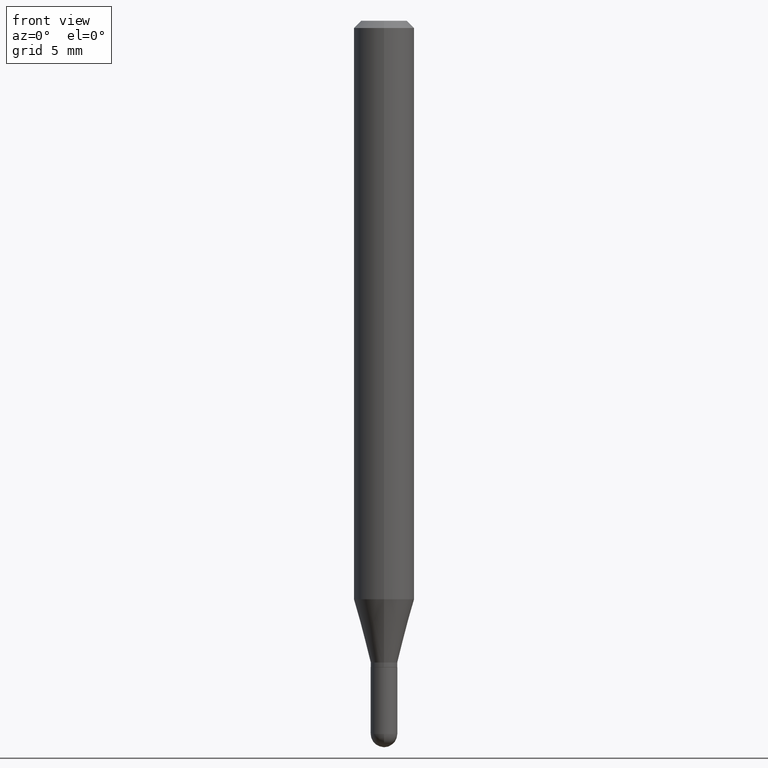
[diagram: clean part render]
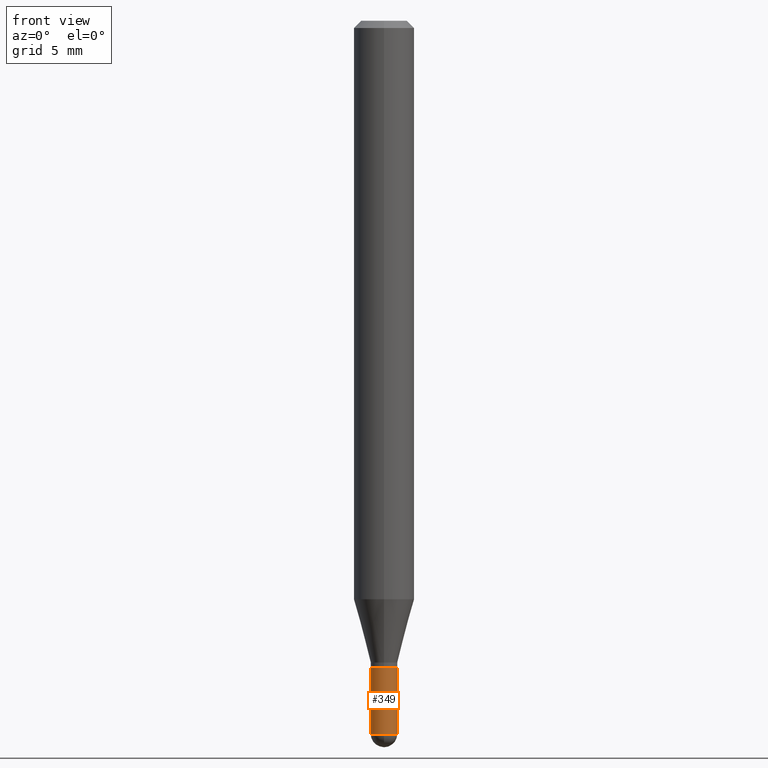
[diagram: same view with one face highlighted and labeled with its STEP entity id]
A machine part, front view. The second image highlights one B-rep face of the part: STEP entity #349.
In plain terms, the highlighted cylindrical surface (edge-blend (fillet) strip) has radius 0.6985 mm, axis along (-0, 0, 1).
Its self-contained STEP definition (entity closure, byte-faithful):
#11 = EDGE_CURVE ( 'NONE', #209, #200, #354, .T. ) ;
#17 = VECTOR ( 'NONE', #160, 39.37007874015748143 ) ;
#19 = CARTESIAN_POINT ( 'NONE',  ( 0.000000000000000000, 0.000000000000000000, 0.000000000000000000 ) ) ;
#34 = DIRECTION ( 'NONE',  ( -2.445468806185136597E-29, 3.491481338843145583E-15, 1.000000000000000000 ) ) ;
#47 = CIRCLE ( 'NONE', #279, 0.02750000000000000708 ) ;
#67 = DIRECTION ( 'NONE',  ( -2.445468806185136597E-29, 3.491481338843145583E-15, 1.000000000000000000 ) ) ;
#79 = AXIS2_PLACEMENT_3D ( 'NONE', #443, #355, #246 ) ;
#103 = CARTESIAN_POINT ( 'NONE',  ( -0.02750000000000000708, 1.953992523340276014E-16, -1.352707149820099356E-30 ) ) ;
#111 = VERTEX_POINT ( 'NONE', #131 ) ;
#131 = CARTESIAN_POINT ( 'NONE',  ( -0.02750000000000000014, -4.705767677067038393E-15, -1.335000000000000187 ) ) ;
#132 = CIRCLE ( 'NONE', #79, 0.02750000000000000014 ) ;
#137 = EDGE_CURVE ( 'NONE', #200, #214, #512, .T. ) ;
#142 = CARTESIAN_POINT ( 'NONE',  ( -0.02750000000000000708, -4.705767677067038393E-15, -1.472500000000000142 ) ) ;
#143 = CYLINDRICAL_SURFACE ( 'NONE', #496, 0.02750000000000000708 ) ;
#160 = DIRECTION ( 'NONE',  ( -2.445468806185136877E-29, 3.491481338843145188E-15, 1.000000000000000000 ) ) ;
#165 = EDGE_LOOP ( 'NONE', ( #476, #353, #376, #185, #492 ) ) ;
#185 = ORIENTED_EDGE ( 'NONE', *, *, #137, .T. ) ;
#188 = CARTESIAN_POINT ( 'NONE',  ( 3.600952817107613706E-29, -5.141206271446532325E-15, -1.472500000000000142 ) ) ;
#194 = DIRECTION ( 'NONE',  ( 1.000000000000000000, -6.982962677686277755E-15, 0.000000000000000000 ) ) ;
#200 = VERTEX_POINT ( 'NONE', #361 ) ;
#209 = VERTEX_POINT ( 'NONE', #404 ) ;
#214 = VERTEX_POINT ( 'NONE', #445 ) ;
#242 = VERTEX_POINT ( 'NONE', #142 ) ;
#246 = DIRECTION ( 'NONE',  ( 1.000000000000000000, -6.982962677686279332E-15, 0.000000000000000000 ) ) ;
#248 = LINE ( 'NONE', #103, #364 ) ;
#254 = DIRECTION ( 'NONE',  ( -2.445468806185136597E-29, 3.491481338843145583E-15, 1.000000000000000000 ) ) ;
#277 = CARTESIAN_POINT ( 'NONE',  ( 0.02750000000000000708, -1.920314736363723691E-16, 1.340948613343882588E-30 ) ) ;
#279 = AXIS2_PLACEMENT_3D ( 'NONE', #188, #67, #331 ) ;
#288 = EDGE_CURVE ( 'NONE', #242, #111, #248, .T. ) ;
#315 = DIRECTION ( 'NONE',  ( -2.445468806185136877E-29, 3.491481338843145188E-15, 1.000000000000000000 ) ) ;
#324 = EDGE_CURVE ( 'NONE', #111, #214, #132, .T. ) ;
#331 = DIRECTION ( 'NONE',  ( 1.000000000000000000, -6.982962677686277755E-15, 0.000000000000000000 ) ) ;
#349 = ADVANCED_FACE ( 'NONE', ( #489 ), #143, .T. ) ;
#353 = ORIENTED_EDGE ( 'NONE', *, *, #505, .T. ) ;
#354 = CIRCLE ( 'NONE', #424, 0.02750000000000000708 ) ;
#355 = DIRECTION ( 'NONE',  ( -2.445468806185136597E-29, 3.491481338843145583E-15, 1.000000000000000000 ) ) ;
#361 = CARTESIAN_POINT ( 'NONE',  ( 0.02750000000000000708, -5.093198403037438216E-15, -1.472500000000000142 ) ) ;
#364 = VECTOR ( 'NONE', #315, 39.37007874015748143 ) ;
#376 = ORIENTED_EDGE ( 'NONE', *, *, #11, .T. ) ;
#378 = CARTESIAN_POINT ( 'NONE',  ( 3.600952817107613706E-29, -5.141206271446532325E-15, -1.472500000000000142 ) ) ;
#404 = CARTESIAN_POINT ( 'NONE',  ( -1.920314736363366977E-16, -0.02750000000000519737, -1.472500000000000142 ) ) ;
#406 = DIRECTION ( 'NONE',  ( 1.000000000000000000, -6.982962677686265922E-15, 4.876176775795935232E-29 ) ) ;
#424 = AXIS2_PLACEMENT_3D ( 'NONE', #378, #34, #194 ) ;
#443 = CARTESIAN_POINT ( 'NONE',  ( 3.264700856257157760E-29, -4.661127587355599122E-15, -1.335000000000000187 ) ) ;
#445 = CARTESIAN_POINT ( 'NONE',  ( 0.02750000000000000014, -4.853159060991972403E-15, -1.335000000000000187 ) ) ;
#476 = ORIENTED_EDGE ( 'NONE', *, *, #288, .F. ) ;
#489 = FACE_OUTER_BOUND ( 'NONE', #165, .T. ) ;
#492 = ORIENTED_EDGE ( 'NONE', *, *, #324, .F. ) ;
#496 = AXIS2_PLACEMENT_3D ( 'NONE', #19, #254, #406 ) ;
#505 = EDGE_CURVE ( 'NONE', #242, #209, #47, .T. ) ;
#512 = LINE ( 'NONE', #277, #17 ) ;